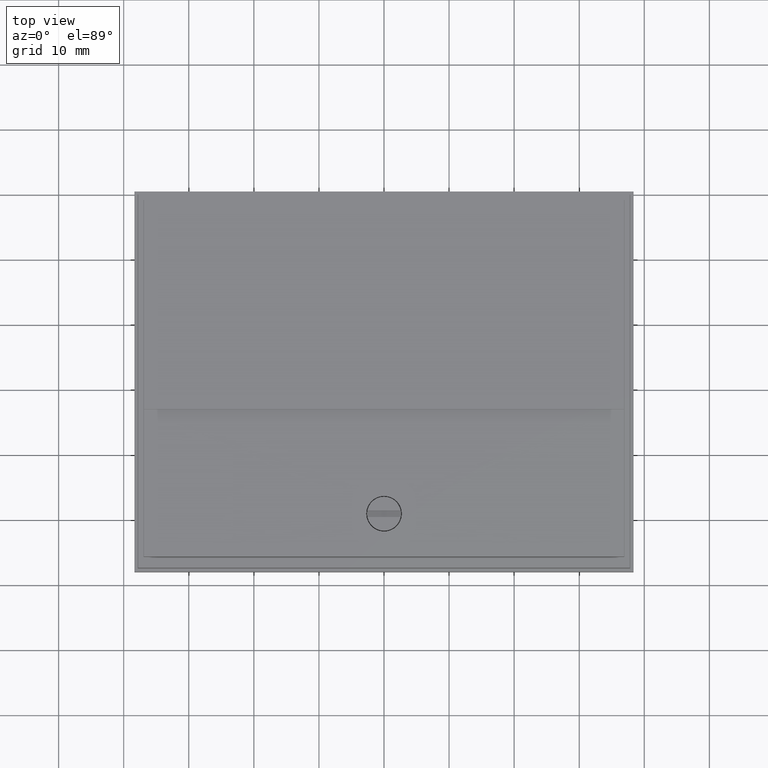
[diagram: clean part render]
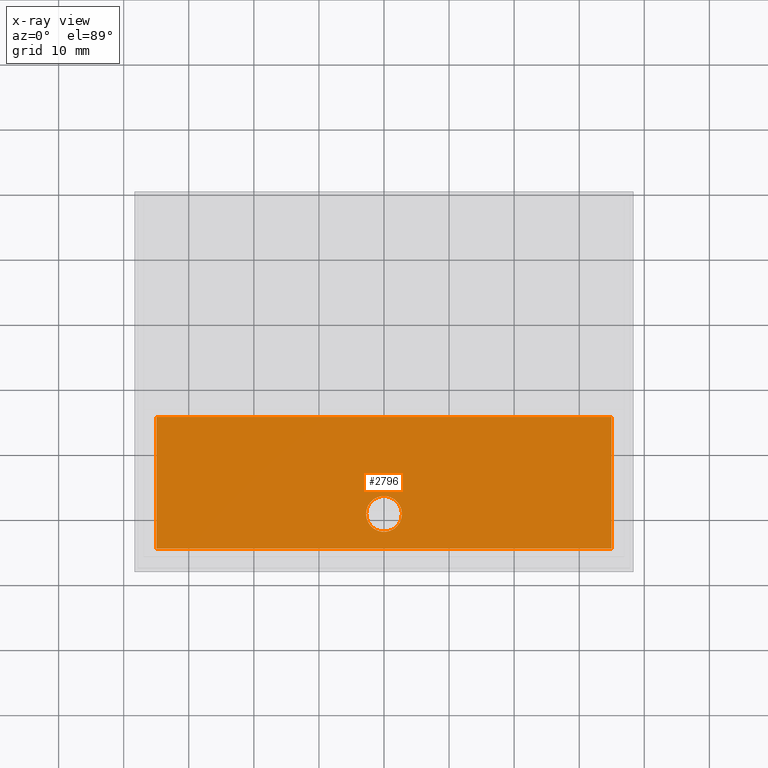
[diagram: x-ray — body ghosted, one internal face saturated and labeled with its STEP entity id]
A machine part, top view, then the same camera in x-ray: the body is ghosted and one INTERNAL B-rep face — a face not visible from any outside direction — is saturated and labeled: STEP entity #2796.
In plain terms, the highlighted planar face has unit normal (0, 0, 1).
Its self-contained STEP definition (entity closure, byte-faithful):
#38 = VECTOR ( 'NONE', #1762, 39.37007874015748143 ) ;
#440 = VERTEX_POINT ( 'NONE', #2552 ) ;
#457 = DIRECTION ( 'NONE',  ( 1.000000000000000000, 0.000000000000000000, -0.000000000000000000 ) ) ;
#483 = CARTESIAN_POINT ( 'NONE',  ( 1.377952755905512028, 0.8267716535433071723, 0.1224409448818897655 ) ) ;
#567 = DIRECTION ( 'NONE',  ( -1.000000000000000000, 0.000000000000000000, 0.000000000000000000 ) ) ;
#573 = CARTESIAN_POINT ( 'NONE',  ( -1.376468306248145756, 0.8267716535433071723, 0.1224409448818897655 ) ) ;
#861 = CARTESIAN_POINT ( 'NONE',  ( -0.1082677165354330312, 1.365923996832129884E-16, 0.1224409448818897655 ) ) ;
#916 = CIRCLE ( 'NONE', #3812, 0.1082677165354330728 ) ;
#942 = DIRECTION ( 'NONE',  ( 0.000000000000000000, 0.000000000000000000, 1.000000000000000000 ) ) ;
#1315 = DIRECTION ( 'NONE',  ( -1.000000000000000000, 0.000000000000000000, 0.000000000000000000 ) ) ;
#1582 = VERTEX_POINT ( 'NONE', #5427 ) ;
#1604 = CARTESIAN_POINT ( 'NONE',  ( 0.1082677165354331006, 1.498513709338240897E-16, 0.1224409448818897655 ) ) ;
#1681 = LINE ( 'NONE', #5455, #38 ) ;
#1732 = CARTESIAN_POINT ( 'NONE',  ( -1.376468306248145534, 0.5870982275079876800, 0.1224409448818897239 ) ) ;
#1762 = DIRECTION ( 'NONE',  ( 1.000000000000000000, 0.000000000000000000, -0.000000000000000000 ) ) ;
#1764 = EDGE_CURVE ( 'NONE', #4659, #1958, #2061, .T. ) ;
#1881 = PLANE ( 'NONE',  #3127 ) ;
#1958 = VERTEX_POINT ( 'NONE', #1732 ) ;
#1976 = ORIENTED_EDGE ( 'NONE', *, *, #2865, .F. ) ;
#2056 = EDGE_CURVE ( 'NONE', #440, #1582, #1681, .T. ) ;
#2061 = LINE ( 'NONE', #5754, #2339 ) ;
#2068 = VECTOR ( 'NONE', #5687, 39.37007874015748143 ) ;
#2132 = EDGE_CURVE ( 'NONE', #2510, #4597, #5545, .T. ) ;
#2213 = CARTESIAN_POINT ( 'NONE',  ( 3.414809992080331488E-17, 1.365923996832129884E-16, 0.1224409448818897655 ) ) ;
#2235 = ORIENTED_EDGE ( 'NONE', *, *, #2056, .F. ) ;
#2323 = ORIENTED_EDGE ( 'NONE', *, *, #2132, .T. ) ;
#2339 = VECTOR ( 'NONE', #2845, 39.37007874015748143 ) ;
#2344 = AXIS2_PLACEMENT_3D ( 'NONE', #2213, #4063, #1315 ) ;
#2510 = VERTEX_POINT ( 'NONE', #861 ) ;
#2552 = CARTESIAN_POINT ( 'NONE',  ( -1.376468306248145534, -0.2111139755394833284, 0.1224409448818897239 ) ) ;
#2646 = ORIENTED_EDGE ( 'NONE', *, *, #1764, .F. ) ;
#2692 = FACE_OUTER_BOUND ( 'NONE', #5921, .T. ) ;
#2796 = ADVANCED_FACE ( 'NONE', ( #2692, #5540 ), #1881, .F. ) ;
#2845 = DIRECTION ( 'NONE',  ( -1.000000000000000000, -0.000000000000000000, 0.000000000000000000 ) ) ;
#2865 = EDGE_CURVE ( 'NONE', #1958, #440, #3295, .T. ) ;
#3127 = AXIS2_PLACEMENT_3D ( 'NONE', #483, #942, #457 ) ;
#3264 = CARTESIAN_POINT ( 'NONE',  ( 1.376468306248145756, 0.8267716535433071723, 0.1224409448818897655 ) ) ;
#3295 = LINE ( 'NONE', #573, #2068 ) ;
#3802 = DIRECTION ( 'NONE',  ( -0.000000000000000000, -0.000000000000000000, 1.000000000000000000 ) ) ;
#3806 = ORIENTED_EDGE ( 'NONE', *, *, #5395, .F. ) ;
#3812 = AXIS2_PLACEMENT_3D ( 'NONE', #4326, #3802, #567 ) ;
#3990 = CARTESIAN_POINT ( 'NONE',  ( 1.376468306248145312, 0.5870982275079879020, 0.1224409448818897239 ) ) ;
#4063 = DIRECTION ( 'NONE',  ( -0.000000000000000000, -0.000000000000000000, 1.000000000000000000 ) ) ;
#4326 = CARTESIAN_POINT ( 'NONE',  ( 3.414809992080331488E-17, 1.365923996832129884E-16, 0.1224409448818897655 ) ) ;
#4467 = EDGE_CURVE ( 'NONE', #4597, #2510, #916, .T. ) ;
#4597 = VERTEX_POINT ( 'NONE', #1604 ) ;
#4659 = VERTEX_POINT ( 'NONE', #3990 ) ;
#4692 = ORIENTED_EDGE ( 'NONE', *, *, #4467, .T. ) ;
#5086 = EDGE_LOOP ( 'NONE', ( #2323, #4692 ) ) ;
#5216 = LINE ( 'NONE', #3264, #5859 ) ;
#5395 = EDGE_CURVE ( 'NONE', #1582, #4659, #5216, .T. ) ;
#5427 = CARTESIAN_POINT ( 'NONE',  ( 1.376468306248145756, -0.2111139755394833284, 0.1224409448818897239 ) ) ;
#5455 = CARTESIAN_POINT ( 'NONE',  ( 1.377952755905512028, -0.2111139755394834394, 0.1224409448818897655 ) ) ;
#5540 = FACE_BOUND ( 'NONE', #5086, .T. ) ;
#5545 = CIRCLE ( 'NONE', #2344, 0.1082677165354330728 ) ;
#5687 = DIRECTION ( 'NONE',  ( 0.000000000000000000, -1.000000000000000000, -0.000000000000000000 ) ) ;
#5701 = DIRECTION ( 'NONE',  ( -0.000000000000000000, 1.000000000000000000, 0.000000000000000000 ) ) ;
#5754 = CARTESIAN_POINT ( 'NONE',  ( 1.377952755905512028, 0.5870982275079882351, 0.1224409448818897655 ) ) ;
#5859 = VECTOR ( 'NONE', #5701, 39.37007874015748143 ) ;
#5921 = EDGE_LOOP ( 'NONE', ( #2646, #3806, #2235, #1976 ) ) ;